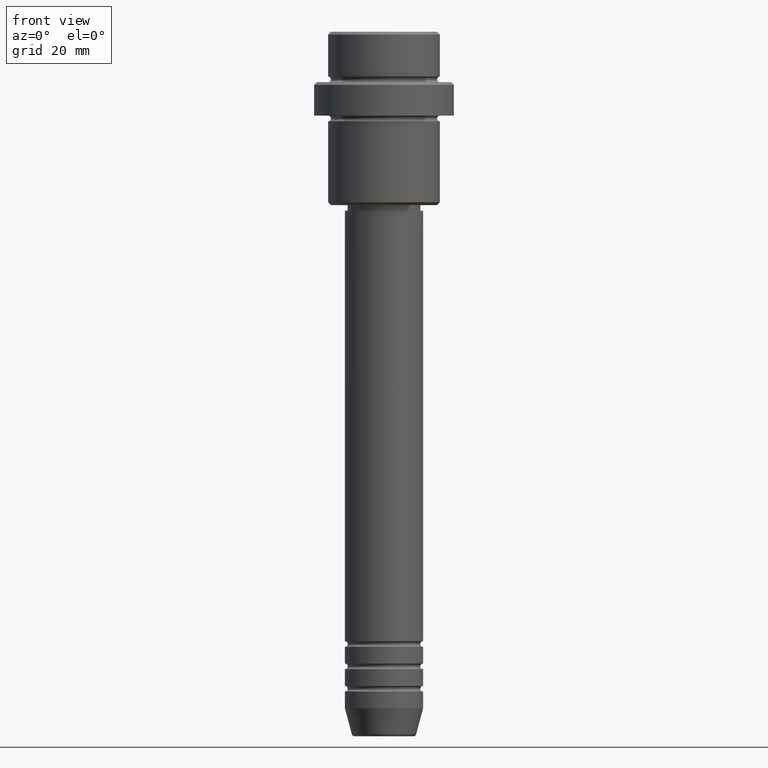
[diagram: clean part render]
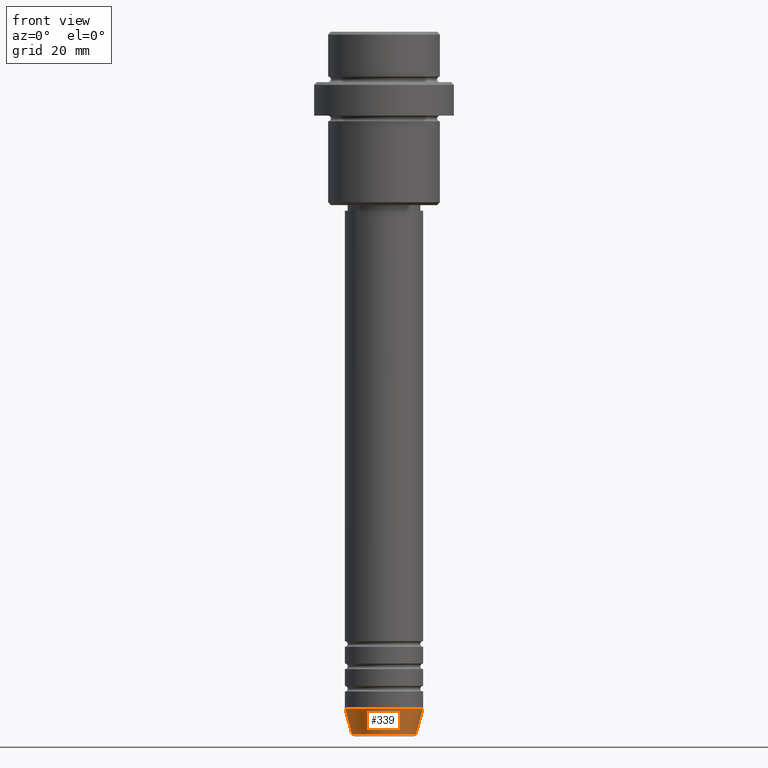
[diagram: same view with one face highlighted and labeled with its STEP entity id]
A machine part, front view. The second image highlights one B-rep face of the part: STEP entity #339.
In plain terms, the highlighted conical surface has half-angle 15 deg.
Its self-contained STEP definition (entity closure, byte-faithful):
#13 = DIRECTION ( 'NONE',  ( 1.000000000000000000, 0.000000000000000000, 0.000000000000000000 ) ) ;
#20 = AXIS2_PLACEMENT_3D ( 'NONE', #273, #909, #1132 ) ;
#118 = EDGE_LOOP ( 'NONE', ( #1131, #1081, #1069, #1052 ) ) ;
#273 = CARTESIAN_POINT ( 'NONE',  ( 0.000000000000000000, 0.000000000000000000, -121.0000000000000000 ) ) ;
#339 = ADVANCED_FACE ( 'NONE', ( #373 ), #647, .T. ) ;
#358 = CARTESIAN_POINT ( 'NONE',  ( 7.000000000000000000, 0.000000000000000000, -121.0000000000000000 ) ) ;
#365 = EDGE_CURVE ( 'NONE', #841, #487, #591, .T. ) ;
#373 = FACE_OUTER_BOUND ( 'NONE', #118, .T. ) ;
#392 = CARTESIAN_POINT ( 'NONE',  ( -7.000000000000000000, 8.572527594031473190E-16, -121.0000000000000000 ) ) ;
#398 = DIRECTION ( 'NONE',  ( -0.2588190451025213501, 3.169619151431772337E-17, 0.9659258262890680902 ) ) ;
#467 = VECTOR ( 'NONE', #398, 1000.000000000000000 ) ;
#487 = VERTEX_POINT ( 'NONE', #1267 ) ;
#558 = VECTOR ( 'NONE', #612, 1000.000000000000000 ) ;
#591 = LINE ( 'NONE', #358, #558 ) ;
#612 = DIRECTION ( 'NONE',  ( 0.2588190451025213501, 0.000000000000000000, 0.9659258262890680902 ) ) ;
#615 = CARTESIAN_POINT ( 'NONE',  ( 0.000000000000000000, 0.000000000000000000, -121.0000000000000000 ) ) ;
#647 = CONICAL_SURFACE ( 'NONE', #20, 7.000000000000000000, 0.2617993877991500740 ) ;
#765 = AXIS2_PLACEMENT_3D ( 'NONE', #615, #1270, #1045 ) ;
#789 = CIRCLE ( 'NONE', #765, 7.000000000000000000 ) ;
#841 = VERTEX_POINT ( 'NONE', #1056 ) ;
#909 = DIRECTION ( 'NONE',  ( -0.000000000000000000, -0.000000000000000000, 1.000000000000000000 ) ) ;
#935 = LINE ( 'NONE', #1373, #467 ) ;
#955 = VERTEX_POINT ( 'NONE', #392 ) ;
#996 = CARTESIAN_POINT ( 'NONE',  ( 0.000000000000000000, 0.000000000000000000, -125.6294095225512706 ) ) ;
#1045 = DIRECTION ( 'NONE',  ( 1.000000000000000000, 0.000000000000000000, 0.000000000000000000 ) ) ;
#1052 = ORIENTED_EDGE ( 'NONE', *, *, #1360, .F. ) ;
#1056 = CARTESIAN_POINT ( 'NONE',  ( 5.759553456999433330, 0.000000000000000000, -125.6294095225512706 ) ) ;
#1069 = ORIENTED_EDGE ( 'NONE', *, *, #365, .T. ) ;
#1081 = ORIENTED_EDGE ( 'NONE', *, *, #1105, .T. ) ;
#1105 = EDGE_CURVE ( 'NONE', #1230, #841, #1124, .T. ) ;
#1124 = CIRCLE ( 'NONE', #1237, 5.759553456999433330 ) ;
#1131 = ORIENTED_EDGE ( 'NONE', *, *, #1320, .F. ) ;
#1132 = DIRECTION ( 'NONE',  ( 1.000000000000000000, 0.000000000000000000, 0.000000000000000000 ) ) ;
#1141 = CARTESIAN_POINT ( 'NONE',  ( -5.759553456999433330, 7.812973149831951773E-16, -125.6294095225512706 ) ) ;
#1193 = DIRECTION ( 'NONE',  ( -0.000000000000000000, -0.000000000000000000, 1.000000000000000000 ) ) ;
#1230 = VERTEX_POINT ( 'NONE', #1141 ) ;
#1237 = AXIS2_PLACEMENT_3D ( 'NONE', #996, #1193, #13 ) ;
#1267 = CARTESIAN_POINT ( 'NONE',  ( 7.000000000000000000, 0.000000000000000000, -121.0000000000000000 ) ) ;
#1270 = DIRECTION ( 'NONE',  ( -0.000000000000000000, -0.000000000000000000, 1.000000000000000000 ) ) ;
#1320 = EDGE_CURVE ( 'NONE', #1230, #955, #935, .T. ) ;
#1360 = EDGE_CURVE ( 'NONE', #955, #487, #789, .T. ) ;
#1373 = CARTESIAN_POINT ( 'NONE',  ( -7.000000000000000000, 8.572527594031473190E-16, -121.0000000000000000 ) ) ;